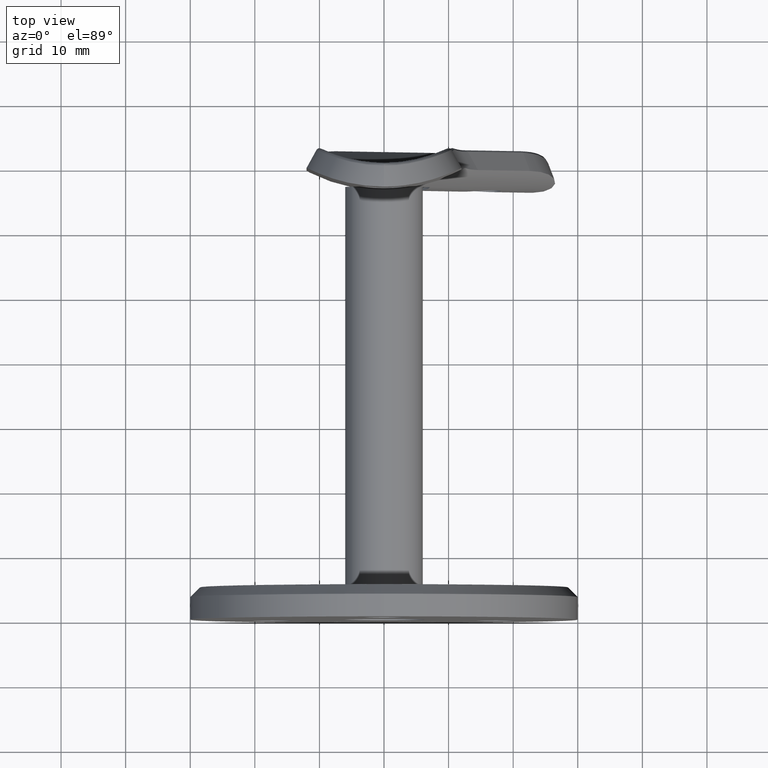
[diagram: clean part render]
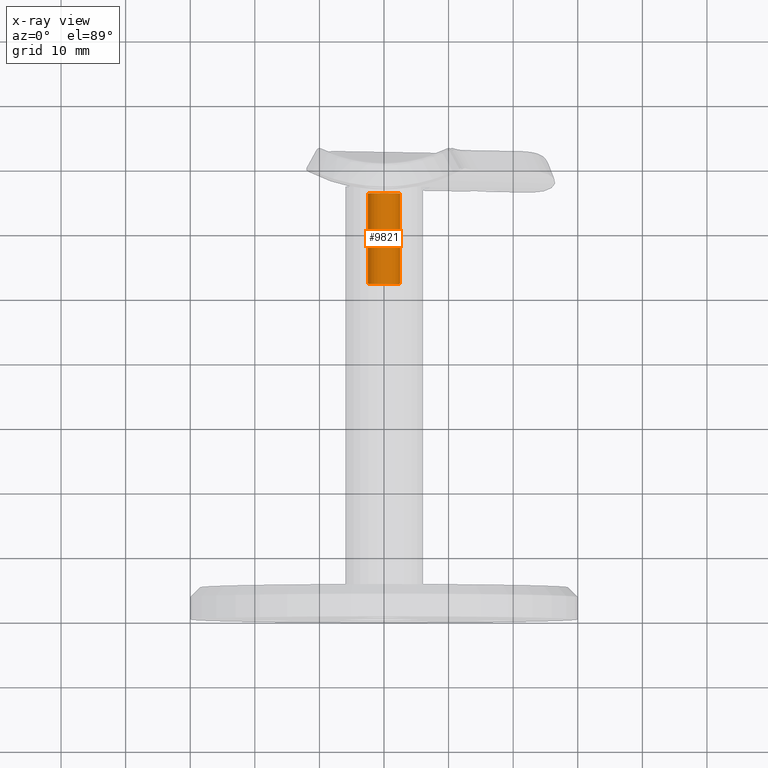
[diagram: x-ray — body ghosted, one internal face saturated and labeled with its STEP entity id]
A machine part, top view, then the same camera in x-ray: the body is ghosted and one INTERNAL B-rep face — a face not visible from any outside direction — is saturated and labeled: STEP entity #9821.
In plain terms, the highlighted cylindrical surface (bore or boss wall) has radius 2.5 mm, axis along (0, 1, 0).
Its self-contained STEP definition (entity closure, byte-faithful):
#123 = VERTEX_POINT ( 'NONE', #3880 ) ;
#1906 = EDGE_CURVE ( 'NONE', #7568, #7568, #5400, .T. ) ;
#3106 = ORIENTED_EDGE ( 'NONE', *, *, #1906, .F. ) ;
#3194 = FACE_OUTER_BOUND ( 'NONE', #12995, .T. ) ;
#3880 = CARTESIAN_POINT ( 'NONE',  ( 0.000000000000000000, 61.00000000000002132, 2.499999999999992895 ) ) ;
#4337 = ORIENTED_EDGE ( 'NONE', *, *, #11536, .T. ) ;
#5400 = CIRCLE ( 'NONE', #9896, 2.499999999999996003 ) ;
#5462 = CIRCLE ( 'NONE', #13096, 2.499999999999992895 ) ;
#6656 = CARTESIAN_POINT ( 'NONE',  ( 0.000000000000000000, 61.00000000000002132, 0.000000000000000000 ) ) ;
#7568 = VERTEX_POINT ( 'NONE', #10141 ) ;
#7844 = DIRECTION ( 'NONE',  ( 0.000000000000000000, 0.000000000000000000, 1.000000000000000000 ) ) ;
#9703 = DIRECTION ( 'NONE',  ( 0.000000000000000000, 1.000000000000000000, 0.000000000000000000 ) ) ;
#9804 = DIRECTION ( 'NONE',  ( 0.000000000000000000, 1.000000000000000000, 0.000000000000000000 ) ) ;
#9821 = ADVANCED_FACE ( 'NONE', ( #13922, #3194 ), #16594, .F. ) ;
#9873 = DIRECTION ( 'NONE',  ( 0.000000000000000000, 0.000000000000000000, 1.000000000000000000 ) ) ;
#9896 = AXIS2_PLACEMENT_3D ( 'NONE', #12510, #9703, #9873 ) ;
#10048 = EDGE_LOOP ( 'NONE', ( #4337 ) ) ;
#10141 = CARTESIAN_POINT ( 'NONE',  ( 0.000000000000000000, 46.99999999999999289, 2.499999999999996003 ) ) ;
#11536 = EDGE_CURVE ( 'NONE', #123, #123, #5462, .T. ) ;
#12510 = CARTESIAN_POINT ( 'NONE',  ( 0.000000000000000000, 46.99999999999999289, 0.000000000000000000 ) ) ;
#12859 = AXIS2_PLACEMENT_3D ( 'NONE', #16314, #9804, #14168 ) ;
#12995 = EDGE_LOOP ( 'NONE', ( #3106 ) ) ;
#13096 = AXIS2_PLACEMENT_3D ( 'NONE', #6656, #15886, #7844 ) ;
#13922 = FACE_OUTER_BOUND ( 'NONE', #10048, .T. ) ;
#14168 = DIRECTION ( 'NONE',  ( 0.000000000000000000, 0.000000000000000000, 1.000000000000000000 ) ) ;
#15886 = DIRECTION ( 'NONE',  ( 0.000000000000000000, 1.000000000000000000, 0.000000000000000000 ) ) ;
#16314 = CARTESIAN_POINT ( 'NONE',  ( 0.000000000000000000, 61.99999999999999289, 0.000000000000000000 ) ) ;
#16594 = CYLINDRICAL_SURFACE ( 'NONE', #12859, 2.499999999999992895 ) ;